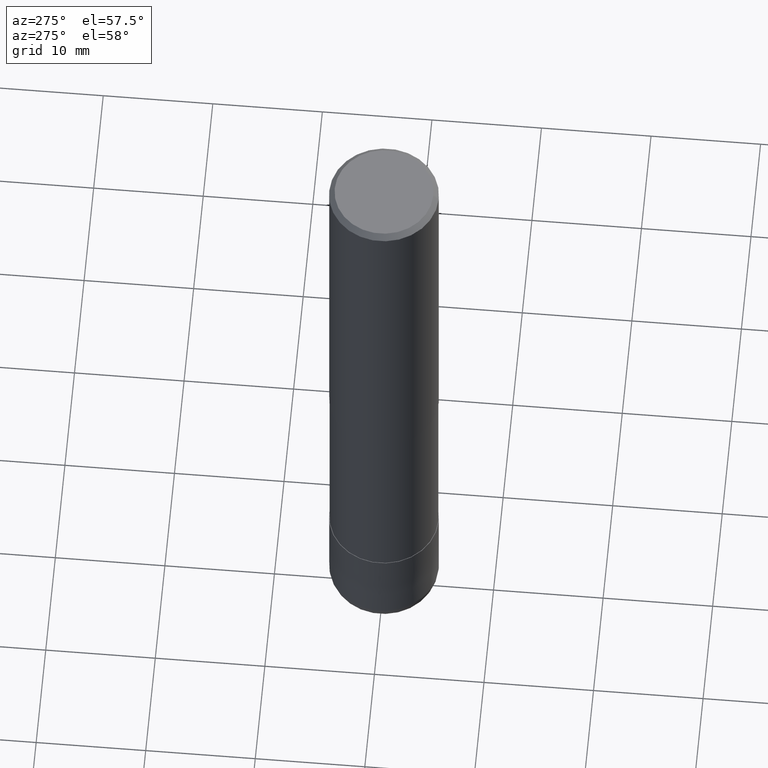
[diagram: clean part render]
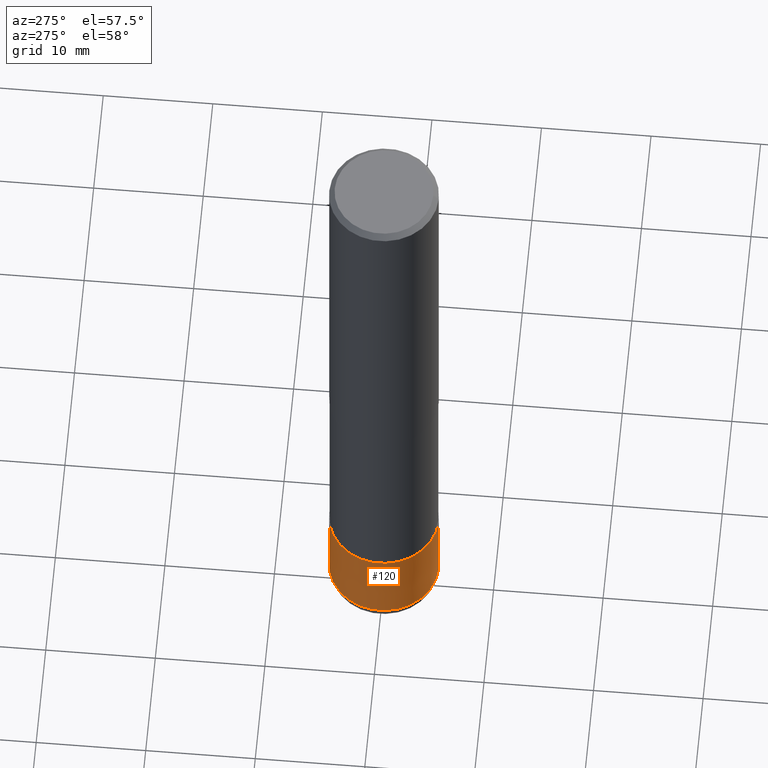
[diagram: same view with one face highlighted and labeled with its STEP entity id]
A machine part, auxiliary view. The second image highlights one B-rep face of the part: STEP entity #120.
In plain terms, the highlighted conical surface has half-angle 0.001 deg.
Its self-contained STEP definition (entity closure, byte-faithful):
#108=VERTEX_POINT('',#248);
#112=EDGE_CURVE('',#108,#116,#253,.T.);
#116=VERTEX_POINT('',#258);
#120=ADVANCED_FACE('',(#262),#263,.T.);
#132=VERTEX_POINT('',#276);
#148=VERTEX_POINT('',#294);
#152=EDGE_CURVE('',#116,#148,#298,.T.);
#164=EDGE_CURVE('',#132,#108,#310,.T.);
#170=EDGE_CURVE('',#132,#148,#316,.T.);
#248=CARTESIAN_POINT('',(6.1229093084765E-016,-4.9999,-55.0));
#253=CIRCLE('',#405,4.9999);
#258=CARTESIAN_POINT('',(0.0,4.9999,-55.0));
#262=FACE_OUTER_BOUND('',#415,.T.);
#263=CONICAL_SURFACE('',#416,4.99995,1.24999999993198E-005);
#276=CARTESIAN_POINT('',(6.12303176911189E-016,-5.0,-63.0));
#294=CARTESIAN_POINT('',(0.0,5.0,-63.0));
#298=LINE('',#458,#459);
#310=LINE('',#473,#474);
#316=CIRCLE('',#483,5.0);
#405=AXIS2_PLACEMENT_3D('',#581,#582,#583);
#415=EDGE_LOOP('',(#596,#597,#598,#599));
#416=AXIS2_PLACEMENT_3D('',#600,#601,#602);
#458=CARTESIAN_POINT('',(-6.1229705387942E-016,4.99995,-59.0));
#459=VECTOR('',#637,1.0);
#473=CARTESIAN_POINT('',(6.1229705387942E-016,-4.99995,-59.0));
#474=VECTOR('',#645,1.0);
#483=AXIS2_PLACEMENT_3D('',#652,#653,#654);
#581=CARTESIAN_POINT('',(0.0,0.0,-55.0));
#582=DIRECTION('',(0.0,0.0,-1.0));
#583=DIRECTION('',(0.0,1.0,0.0));
#596=ORIENTED_EDGE('',*,*,#152,.T.);
#597=ORIENTED_EDGE('',*,*,#170,.F.);
#598=ORIENTED_EDGE('',*,*,#164,.T.);
#599=ORIENTED_EDGE('',*,*,#112,.T.);
#600=CARTESIAN_POINT('',(0.0,0.0,-59.0));
#601=DIRECTION('',(0.0,-0.0,-1.0));
#602=DIRECTION('',(0.0,1.0,0.0));
#637=DIRECTION('',(-1.53075794215481E-021,1.24999999989943E-005,-0.999999999921875));
#645=DIRECTION('',(-1.53075794215481E-021,1.24999999989943E-005,0.999999999921875));
#652=CARTESIAN_POINT('',(0.0,0.0,-63.0));
#653=DIRECTION('',(0.0,0.0,-1.0));
#654=DIRECTION('',(0.0,1.0,0.0));